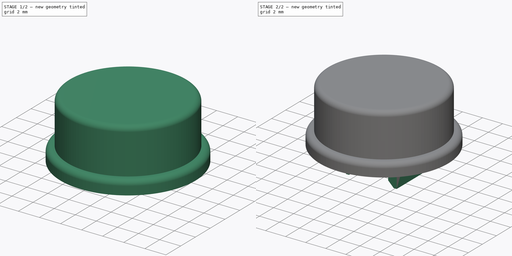
[diagram: build sequence overview — one tinted view per stage of 2, left to right]
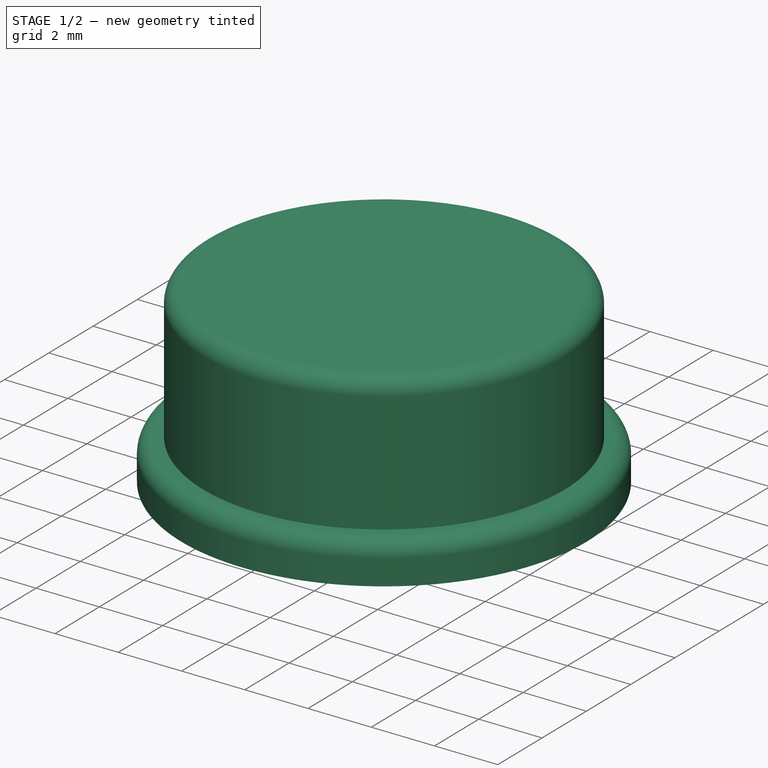
[diagram: stage 1 of 2 — iso view after this stage's code; geometry added in this stage tinted green]
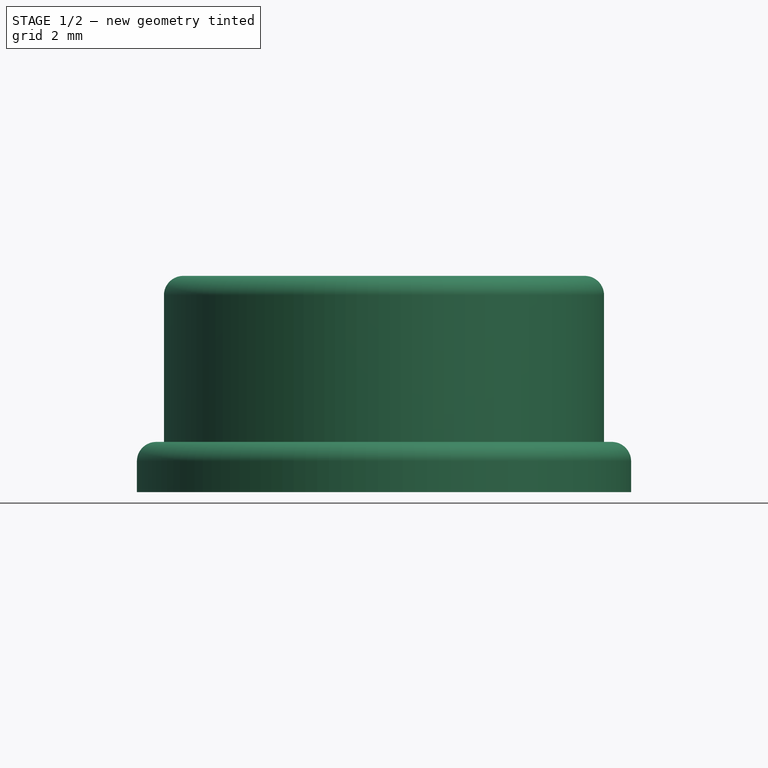
[diagram: stage 1 of 2 — front view after this stage's code; geometry added in this stage tinted green]
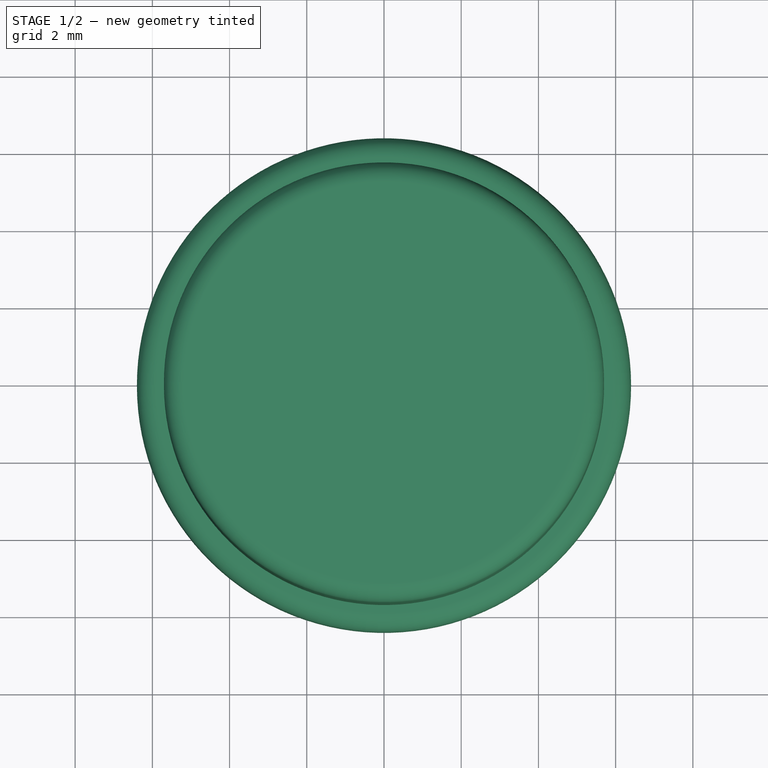
[diagram: stage 1 of 2 — top view after this stage's code; geometry added in this stage tinted green]
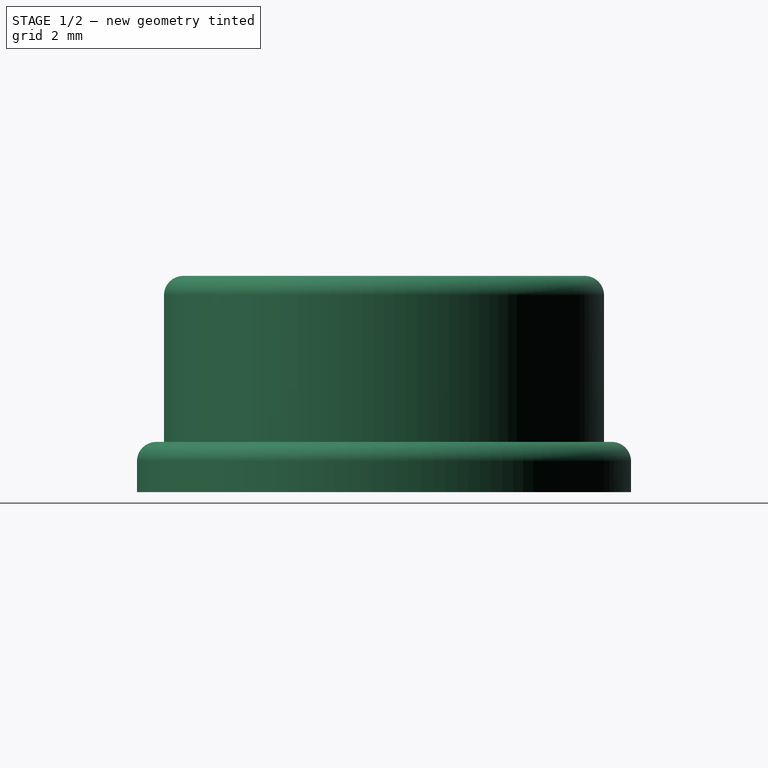
[diagram: stage 1 of 2 — right view after this stage's code; geometry added in this stage tinted green]
FCSTD DOCUMENT  (FreeCAD 0.19R24291 (Git))
Label: B3F-40XX-keycap
Comment: FreeCAD-models by mgesteiro -- https://github.com/mgesteiro/FreeCAD-models
License: Creative Commons Attribution-ShareAlike
LicenseURL: http://creativecommons.org/licenses/by-sa/4.0/
objects: Sketcher::SketchObject×4, PartDesign::Pad×3, PartDesign::Revolution×1, PartDesign::Body×1, App::Part×1, Part::Feature×1
note: 14 computed .brp shape members not serialized (recipe doc carries the construction recipe); baked Part::Feature solids carry a one-line shape summary decoded from their .brp

FEATURE [Sketcher::SketchObject] Sketch  label="Sketch-base-profile"
  FullyConstrained = true
  MapMode = 5
  Placement = pos=(0,0,0) rot=(1,0,0;1.5708rad)
  Support = -> [XZ_Plane002]
  sketch-geometry (13):
    g0: LineSegment StartX=0 StartY=5.6 StartZ=0 EndX=5.2 EndY=5.6 EndZ=0
    g1: LineSegment StartX=5.7 StartY=5.1 StartZ=0 EndX=5.7 EndY=1.3 EndZ=0
    g2: LineSegment StartX=5.7 StartY=1.3 StartZ=0 EndX=5.9 EndY=1.3 EndZ=0
    g3: LineSegment StartX=6.4 StartY=0.8 StartZ=0 EndX=6.4 EndY=0 EndZ=0
    g4: LineSegment StartX=6.4 StartY=0 StartZ=0 EndX=4.4 EndY=0 EndZ=0
    g5: LineSegment StartX=4.4 StartY=0 StartZ=0 EndX=4.4 EndY=3.8 EndZ=0
    g6: LineSegment StartX=3.9 StartY=4.3 StartZ=0 EndX=0 EndY=4.3 EndZ=0
    g7: LineSegment StartX=0 StartY=4.3 StartZ=0 EndX=0 EndY=5.6 EndZ=0
    g8: LineSegment StartX=5.7 StartY=1.3 StartZ=0 EndX=4.4 EndY=1.3 EndZ=0
    g9: ArcOfCircle CenterX=5.2 CenterY=5.1 CenterZ=0 NormalX=0 NormalY=0 NormalZ=1 AngleXU=0 Radius=0.5 StartAngle=0 EndAngle=1.5708
    g10: ArcOfCircle CenterX=3.9 CenterY=3.8 CenterZ=0 NormalX=0 NormalY=0 NormalZ=1 AngleXU=0 Radius=0.5 StartAngle=4e-16 EndAngle=1.5708
    g11: ArcOfCircle CenterX=5.9 CenterY=0.8 CenterZ=0 NormalX=0 NormalY=0 NormalZ=1 AngleXU=0 Radius=0.5 StartAngle=0 EndAngle=1.5708
    g12: LineSegment StartX=5.7 StartY=1.3 StartZ=0 EndX=5.7 EndY=0 EndZ=0
  constraints (36):
    c: PointOnObject(g0,g-2)
    c: Horizontal(g0)
    c: Vertical(g1)
    c: Coincident(g1,g2)
    c: Horizontal(g2)
    c: Vertical(g3)
    c: Coincident(g3,g4)
    c: Horizontal(g4)
    c: Coincident(g4,g5)
    c: Vertical(g5)
    c: Horizontal(g6)
    c: Coincident(g6,g7)
    c: Coincident(g7,g0)
    c: Vertical(g7)
    c: DistanceY(g7,g7) = 1.3
    c: DistanceX(g3) = 6.4
    c: Coincident(g8,g1)
    c: PointOnObject(g8,g5)
    c: Horizontal(g8)
    c: Equal(g8,g7)
    c: PointOnObject(g4,g-1)
    c: Tangent(g0,g9) = 1.5708
    c: Tangent(g1,g9) = 1.5708
    c: Tangent(g6,g10) = -1.5708
    c: Tangent(g5,g10) = -1.5708
    c: DistanceX(g1) = 5.7
    c: DistanceY(g0) = 5.6
    c: Equal(g10,g9)
    c: Radius(g9) = 0.5
    c: Tangent(g2,g11) = 1.5708
    c: Tangent(g3,g11) = 1.5708
    c: Equal(g11,g9)
    c: Coincident(g12,g1)
    c: PointOnObject(g12,g4)
    c: Vertical(g12)
    c: Equal(g12,g8)
FEATURE [PartDesign::Revolution] Revolution  label="Revolution-base"
  Angle = 360
  Axis = (0,2e-16,1)
  Base = (0,0,0)
  Placement = pos=(0,0,0) rot=(1,0,0;1.5708rad)
  Profile = -> Sketch
  ReferenceAxis = -> Sketch [V_Axis]
  Reversed = true
FEATURE [Sketcher::SketchObject] Sketch001  label="Sketch-interior-supports"
  FullyConstrained = true
  MapMode = 5
  Placement = pos=(0,2.8e-15,4.3) rot=(1,0,0;3.14159rad)
  Support = -> [Revolution]
  sketch-geometry (36):
    g0: LineSegment StartX=-0.25 StartY=4.725 StartZ=0 EndX=0.25 EndY=4.725 EndZ=0
    g1: LineSegment StartX=0.25 StartY=4.725 StartZ=0 EndX=0.25 EndY=2.525 EndZ=0
    g2: LineSegment StartX=0.25 StartY=2.525 StartZ=0 EndX=0.75 EndY=2.525 EndZ=0
    g3: LineSegment StartX=0.75 StartY=2.525 StartZ=0 EndX=0.75 EndY=1.925 EndZ=0
    g4: LineSegment StartX=0.75 StartY=1.925 StartZ=0 EndX=-0.75 EndY=1.925 EndZ=0
    g5: LineSegment StartX=-0.75 StartY=1.925 StartZ=0 EndX=-0.75 EndY=2.525 EndZ=0
    g6: LineSegment StartX=-0.75 StartY=2.525 StartZ=0 EndX=-0.25 EndY=2.525 EndZ=0
    g7: LineSegment StartX=-0.25 StartY=2.525 StartZ=0 EndX=-0.25 EndY=4.725 EndZ=0
    g8: LineSegment StartX=-0.25 StartY=2.525 StartZ=0 EndX=0.25 EndY=2.525 EndZ=0
    g9: LineSegment StartX=-0.25 StartY=-4.725 StartZ=0 EndX=0.25 EndY=-4.725 EndZ=0
    g10: LineSegment StartX=0.25 StartY=-4.725 StartZ=0 EndX=0.25 EndY=-2.525 EndZ=0
    g11: LineSegment StartX=0.25 StartY=-2.525 StartZ=0 EndX=0.75 EndY=-2.525 EndZ=0
    g12: LineSegment StartX=0.75 StartY=-2.525 StartZ=0 EndX=0.75 EndY=-1.925 EndZ=0
    g13: LineSegment StartX=0.75 StartY=-1.925 StartZ=0 EndX=-0.75 EndY=-1.925 EndZ=0
    g14: LineSegment StartX=-0.75 StartY=-1.925 StartZ=0 EndX=-0.75 EndY=-2.525 EndZ=0
    g15: LineSegment StartX=-0.75 StartY=-2.525 StartZ=0 EndX=-0.25 EndY=-2.525 EndZ=0
    g16: LineSegment StartX=-0.25 StartY=-2.525 StartZ=0 EndX=-0.25 EndY=-4.725 EndZ=0
    g17: LineSegment StartX=-0.25 StartY=-2.525 StartZ=0 EndX=0.25 EndY=-2.525 EndZ=0
    g18: LineSegment StartX=1.925 StartY=1.8 StartZ=0 EndX=1.925 EndY=-1.8 EndZ=0
    g19: LineSegment StartX=1.925 StartY=-1.8 StartZ=0 EndX=2.525 EndY=-1.8 EndZ=0
    g20: LineSegment StartX=2.525 StartY=-1.8 StartZ=0 EndX=2.525 EndY=-0.25 EndZ=0
    g21: LineSegment StartX=2.525 StartY=-0.25 StartZ=0 EndX=4.725 EndY=-0.25 EndZ=0
    g22: LineSegment StartX=4.725 StartY=-0.25 StartZ=0 EndX=4.725 EndY=0.25 EndZ=0
    g23: LineSegment StartX=4.725 StartY=0.25 StartZ=0 EndX=2.525 EndY=0.25 EndZ=0
    g24: LineSegment StartX=2.525 StartY=0.25 StartZ=0 EndX=2.525 EndY=1.8 EndZ=0
    g25: LineSegment StartX=2.525 StartY=1.8 StartZ=0 EndX=1.925 EndY=1.8 EndZ=0
    g26: LineSegment StartX=2.525 StartY=0.25 StartZ=0 EndX=2.525 EndY=-0.25 EndZ=0
    g27: LineSegment StartX=-1.925 StartY=1.8 StartZ=0 EndX=-1.925 EndY=-1.8 EndZ=0
    g28: LineSegment StartX=-1.925 StartY=-1.8 StartZ=0 EndX=-2.525 EndY=-1.8 EndZ=0
    g29: LineSegment StartX=-2.525 StartY=-1.8 StartZ=0 EndX=-2.525 EndY=-0.25 EndZ=0
    g30: LineSegment StartX=-2.525 StartY=-0.25 StartZ=0 EndX=-4.725 EndY=-0.25 EndZ=0
    g31: LineSegment StartX=-4.725 StartY=-0.25 StartZ=0 EndX=-4.725 EndY=0.25 EndZ=0
    g32: LineSegment StartX=-4.725 StartY=0.25 StartZ=0 EndX=-2.525 EndY=0.25 EndZ=0
    g33: LineSegment StartX=-2.525 StartY=0.25 StartZ=0 EndX=-2.525 EndY=1.8 EndZ=0
    g34: LineSegment StartX=-2.525 StartY=1.8 StartZ=0 EndX=-1.925 EndY=1.8 EndZ=0
    g35: LineSegment StartX=-2.525 StartY=0.25 StartZ=0 EndX=-2.525 EndY=-0.25 EndZ=0
  constraints (96):
    c: Coincident(g0,g1)
    c: Vertical(g1)
    c: Coincident(g1,g2)
    c: Horizontal(g2)
    c: Coincident(g2,g3)
    c: Vertical(g3)
    c: Coincident(g3,g4)
    c: Coincident(g4,g5)
    c: Vertical(g5)
    c: Coincident(g5,g6)
    c: Horizontal(g6)
    c: Coincident(g6,g7)
    c: Coincident(g7,g0)
    c: Vertical(g7)
    c: Symmetric(g0,g0,g-2)
    c: Symmetric(g4,g3,g-2)
    c: DistanceX(g0,g0) = 0.5
    c: Coincident(g8,g6)
    c: Coincident(g8,g1)
    c: Horizontal(g8)
    c: DistanceY(g3,g3) = 0.6
    c: DistanceX(g4,g4) = 1.5
    c: DistanceY(g4) = 1.925
    c: DistanceY(g7,g7) = 2.2
    c: Coincident(g9,g10)
    c: Vertical(g10)
    c: Coincident(g10,g11)
    c: Horizontal(g11)
    c: Coincident(g11,g12)
    c: Vertical(g12)
    c: Coincident(g12,g13)
    c: Coincident(g13,g14)
    c: Vertical(g14)
    c: Coincident(g14,g15)
    c: Horizontal(g15)
    c: Coincident(g15,g16)
    c: Coincident(g16,g9)
    c: Vertical(g16)
    c: Coincident(g17,g15)
    c: Coincident(g17,g10)
    c: Horizontal(g17)
    c: Symmetric(g13,g12,g-2)
    c: Symmetric(g9,g9,g-2)
    c: Equal(g16,g7)
    c: Equal(g14,g5)
    c: DistanceY(g13) = -1.925
    c: Equal(g13,g4)
    c: Equal(g9,g0)
    c: Coincident(g18,g19)
    c: Horizontal(g19)
    c: Coincident(g19,g20)
    c: Vertical(g20)
    c: Coincident(g20,g21)
    c: Horizontal(g21)
    c: Coincident(g21,g22)
    c: Coincident(g22,g23)
    c: Horizontal(g23)
    c: Coincident(g23,g24)
    c: Vertical(g24)
    c: Coincident(g24,g25)
    c: Coincident(g25,g18)
    c: Horizontal(g25)
    c: Coincident(g26,g23)
    c: Coincident(g26,g20)
    c: Vertical(g26)
    c: Equal(g3,g25)
    c: Symmetric(g18,g18,g-1)
    c: Symmetric(g21,g22,g-1)
    c: Equal(g22,g0)
    c: Equal(g23,g7)
    c: DistanceX(g-1,g18) = 1.925
    c: DistanceY(g18,g18) = 3.6
    c: Coincident(g27,g28)
    c: Horizontal(g28)
    c: Coincident(g28,g29)
    c: Vertical(g29)
    c: Coincident(g29,g30)
    c: Horizontal(g30)
    c: Coincident(g30,g31)
    c: Coincident(g31,g32)
    c: Horizontal(g32)
    c: Coincident(g32,g33)
    c: Vertical(g33)
    c: Coincident(g33,g34)
    c: Coincident(g34,g27)
    c: Horizontal(g34)
    c: Coincident(g35,g32)
    c: Coincident(g35,g29)
    c: Vertical(g35)
    c: Equal(g27,g18)
    c: Symmetric(g27,g27,g-1)
    c: Equal(g34,g25)
    c: Equal(g30,g21)
    c: Symmetric(g31,g30,g-1)
    c: Equal(g31,g22)
    c: DistanceX(g27) = -1.925
FEATURE [PartDesign::Pad] Pad  label="Pad-interior-supports"
  BaseFeature = -> Revolution
  Direction = (1,1,1)
  Length = 4
  Length2 = 100
  Placement = pos=(0,0,0) rot=(1,0,0;1.5708rad)
  Profile = -> Sketch001
  Type = 0
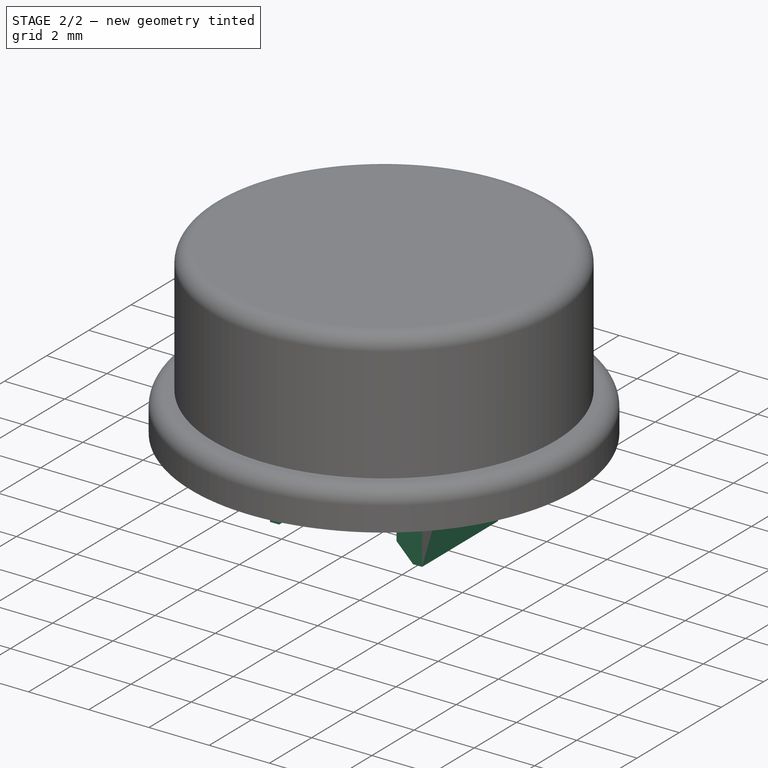
[diagram: stage 2 of 2 — iso view after this stage's code; geometry added in this stage tinted green]
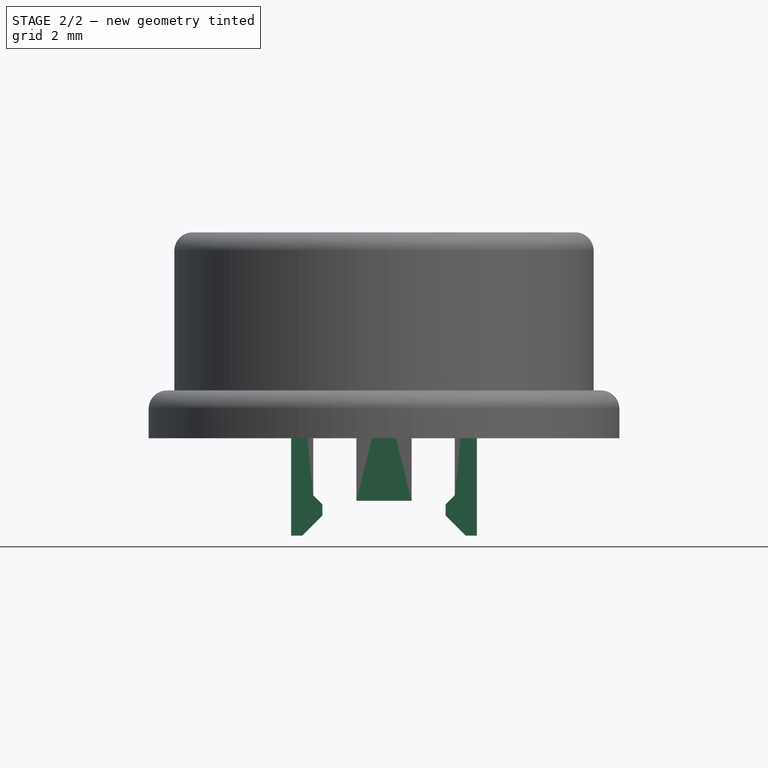
[diagram: stage 2 of 2 — front view after this stage's code; geometry added in this stage tinted green]
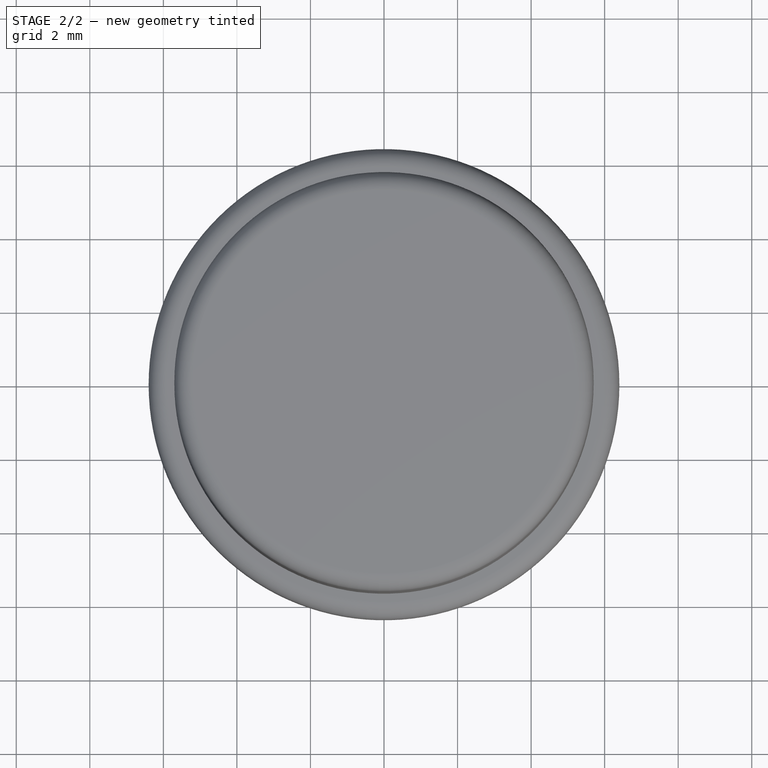
[diagram: stage 2 of 2 — top view after this stage's code; geometry added in this stage tinted green]
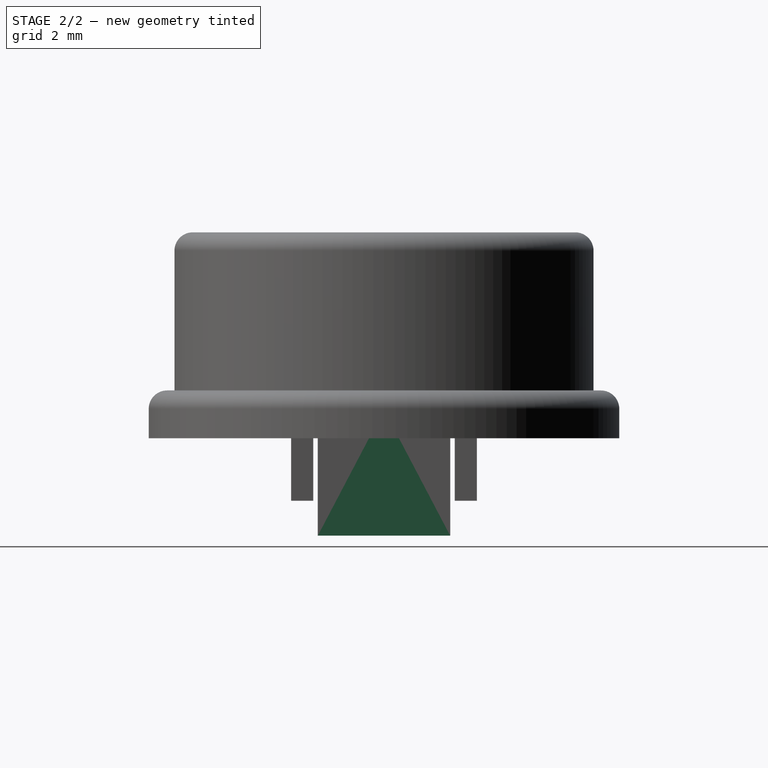
[diagram: stage 2 of 2 — right view after this stage's code; geometry added in this stage tinted green]
FEATURE [Sketcher::SketchObject] Sketch002  label="Sketch-small-walls"
  ExternalGeometry = -> [Pad]
  FullyConstrained = true
  MapMode = 5
  Placement = pos=(0,3e-16,0.3) rot=(1,0,0;3.14159rad)
  Support = -> [Pad]
  sketch-geometry (8):
    g0: LineSegment StartX=-0.75 StartY=2.525 StartZ=0 EndX=0.75 EndY=2.525 EndZ=0
    g1: LineSegment StartX=0.75 StartY=2.525 StartZ=0 EndX=0.75 EndY=1.925 EndZ=0
    g2: LineSegment StartX=0.75 StartY=1.925 StartZ=0 EndX=-0.75 EndY=1.925 EndZ=0
    g3: LineSegment StartX=-0.75 StartY=1.925 StartZ=0 EndX=-0.75 EndY=2.525 EndZ=0
    g4: LineSegment StartX=-0.75 StartY=-1.925 StartZ=0 EndX=0.75 EndY=-1.925 EndZ=0
    g5: LineSegment StartX=0.75 StartY=-1.925 StartZ=0 EndX=0.75 EndY=-2.525 EndZ=0
    g6: LineSegment StartX=0.75 StartY=-2.525 StartZ=0 EndX=-0.75 EndY=-2.525 EndZ=0
    g7: LineSegment StartX=-0.75 StartY=-2.525 StartZ=0 EndX=-0.75 EndY=-1.925 EndZ=0
  constraints (20):
    c: Coincident(g0,g1)
    c: Coincident(g1,g2)
    c: Coincident(g2,g3)
    c: Coincident(g3,g0)
    c: Horizontal(g0)
    c: Horizontal(g2)
    c: Vertical(g1)
    c: Vertical(g3)
    c: Coincident(g0,g-5)
    c: Coincident(g1,g-6)
    c: Coincident(g4,g5)
    c: Coincident(g5,g6)
    c: Coincident(g6,g7)
    c: Coincident(g7,g4)
    c: Horizontal(g4)
    c: Horizontal(g6)
    c: Vertical(g5)
    c: Vertical(g7)
    c: Coincident(g4,g-3)
    c: Coincident(g5,g-4)
FEATURE [PartDesign::Pad] Pad001  label="Pad-small-walls"
  BaseFeature = -> Pad
  Direction = (1,1,1)
  Length = 2
  Length2 = 100
  Placement = pos=(0,0,0) rot=(1,0,0;1.5708rad)
  Profile = -> Sketch002
  Refine = true
  Type = 0
FEATURE [Sketcher::SketchObject] Sketch003  label="Sketch-hooks"
  ExternalGeometry = -> [Pad001]
  FullyConstrained = true
  MapMode = 5
  Placement = pos=(0,-1.8,2e-15) rot=(1,0,0;1.5708rad)
  Support = -> [Pad001]
  sketch-geometry (14):
    g0: LineSegment StartX=-2.525 StartY=0.3 StartZ=0 EndX=-1.925 EndY=0.3 EndZ=0
    g1: LineSegment StartX=-1.925 StartY=0.3 StartZ=0 EndX=-1.925 EndY=-1.55 EndZ=0
    g2: LineSegment StartX=-1.925 StartY=-1.55 StartZ=0 EndX=-1.675 EndY=-1.8 EndZ=0
    g3: LineSegment StartX=-1.675 StartY=-1.8 StartZ=0 EndX=-1.675 EndY=-2.1 EndZ=0
    g4: LineSegment StartX=-1.675 StartY=-2.1 StartZ=0 EndX=-2.225 EndY=-2.65 EndZ=0
    g5: LineSegment StartX=-2.525 StartY=-2.65 StartZ=0 EndX=-2.525 EndY=0.3 EndZ=0
    g6: LineSegment StartX=-2.525 StartY=-2.65 StartZ=0 EndX=-2.225 EndY=-2.65 EndZ=0
    g7: LineSegment StartX=2.525 StartY=0.3 StartZ=0 EndX=1.925 EndY=0.3 EndZ=0
    g8: LineSegment StartX=1.925 StartY=0.3 StartZ=0 EndX=1.925 EndY=-1.55 EndZ=0
    g9: LineSegment StartX=1.925 StartY=-1.55 StartZ=0 EndX=1.675 EndY=-1.8 EndZ=0
    g10: LineSegment StartX=1.675 StartY=-1.8 StartZ=0 EndX=1.675 EndY=-2.1 EndZ=0
    g11: LineSegment StartX=1.675 StartY=-2.1 StartZ=0 EndX=2.225 EndY=-2.65 EndZ=0
    g12: LineSegment StartX=2.525 StartY=-2.65 StartZ=0 EndX=2.525 EndY=0.3 EndZ=0
    g13: LineSegment StartX=2.525 StartY=-2.65 StartZ=0 EndX=2.225 EndY=-2.65 EndZ=0
  constraints (38):
    c: Coincident(g-3,g0)
    c: Coincident(g0,g-3)
    c: Coincident(g0,g1)
    c: Vertical(g1)
    c: Coincident(g1,g2)
    c: Coincident(g2,g3)
    c: Vertical(g3)
    c: Coincident(g3,g4)
    c: Coincident(g5,g0)
    c: Vertical(g5)
    c: Horizontal(g6)
    c: Coincident(g4,g6)
    c: Coincident(g5,g6)
    c: Angle(g2,g4) = 1.5708
    c: Angle(g2,g1) = 2.35619
    c: DistanceY(g5,g5) = 2.95
    c: DistanceY(g1,g1) = 1.85
    c: Equal(g6,g3)
    c: DistanceX(g6,g6) = 0.3
    c: Coincident(g7,g8)
    c: Vertical(g8)
    c: Coincident(g8,g9)
    c: Coincident(g9,g10)
    c: Vertical(g10)
    c: Coincident(g10,g11)
    c: Coincident(g12,g7)
    c: Vertical(g12)
    c: Horizontal(g13)
    c: Coincident(g11,g13)
    c: Coincident(g12,g13)
    c: Angle(g9,g11) = -1.5708
    c: Angle(g9,g8) = -2.35619
    c: Equal(g13,g10)
    c: Coincident(g7,g-4)
    c: Coincident(g-4,g7)
    c: Equal(g13,g6)
    c: Equal(g12,g5)
    c: Equal(g1,g8)
FEATURE [PartDesign::Pad] Pad002  label="Pad-hooks"
  BaseFeature = -> Pad001
  Direction = (1,1,1)
  Length = 3.6
  Length2 = 100
  Placement = pos=(0,0,0) rot=(1,0,0;1.5708rad)
  Profile = -> Sketch003
  Refine = true
  Reversed = true
  Type = 0
FEATURE [PartDesign::Body] Body  label="Body-BF3-40XX-Keycap"
  Group = -> [Sketch,Revolution,Sketch001,Pad,Sketch002,Pad001,Sketch003,Pad002]
  Origin = -> Origin002
  Tip = -> Pad002
FEATURE [App::Part] Part001  label="Part-BF3-40XX-Keycap"
  Group = -> [Body]
  Origin = -> Origin001
  Placement = pos=(24.14,7.9,7) rot=(0,0,1;0rad)
FEATURE [Part::Feature] Part001001  label="keycap"
  Placement = pos=(24.14,7.9,7) rot=(0,0,1;0rad)
  shape: bbox 13.85 x 13.85 x 8.25 mm, 51 faces (baked)
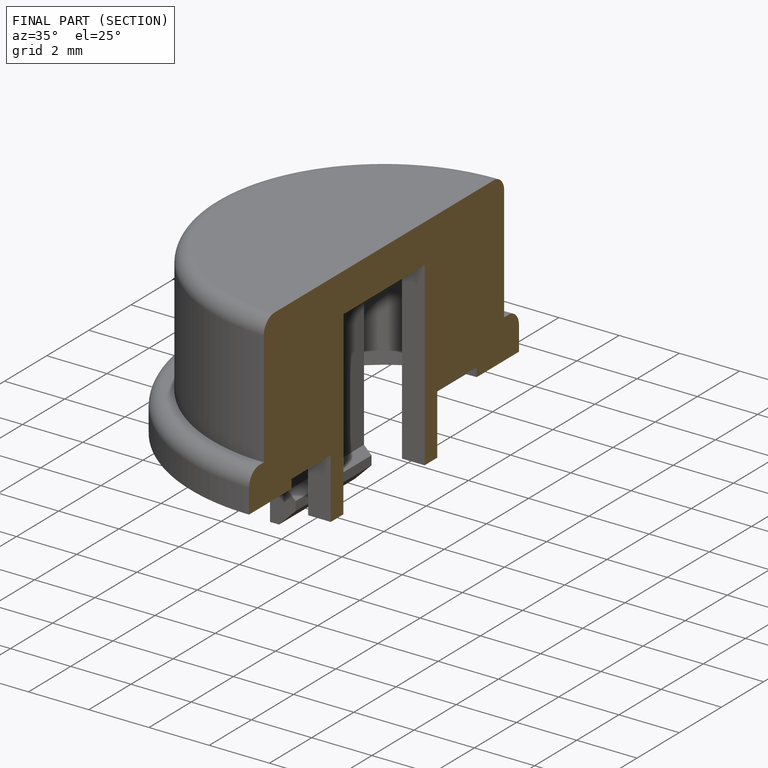
[diagram: finished part — half-section view (interior)]
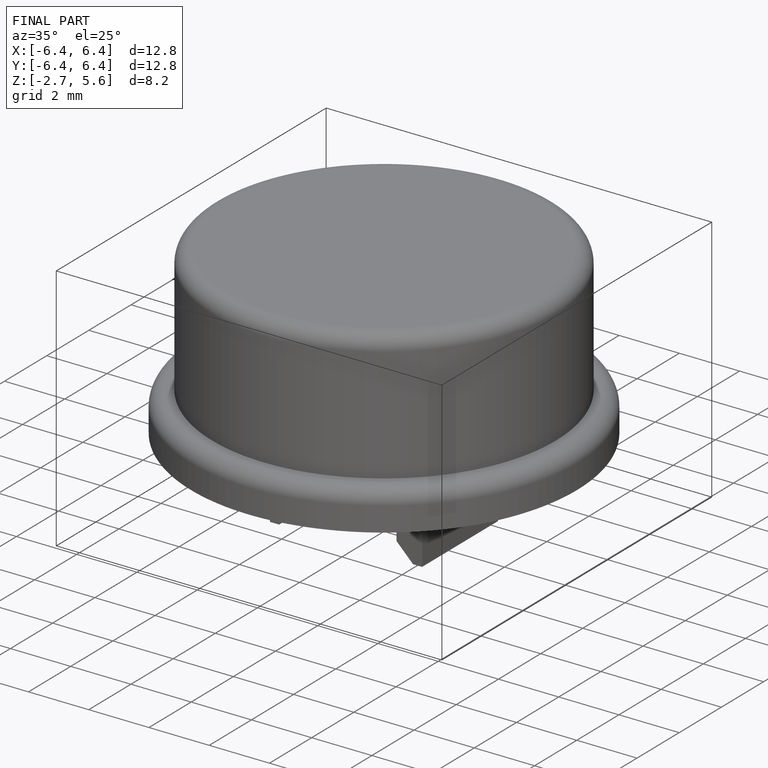
[diagram: finished part — iso view with bounding-box wireframe]
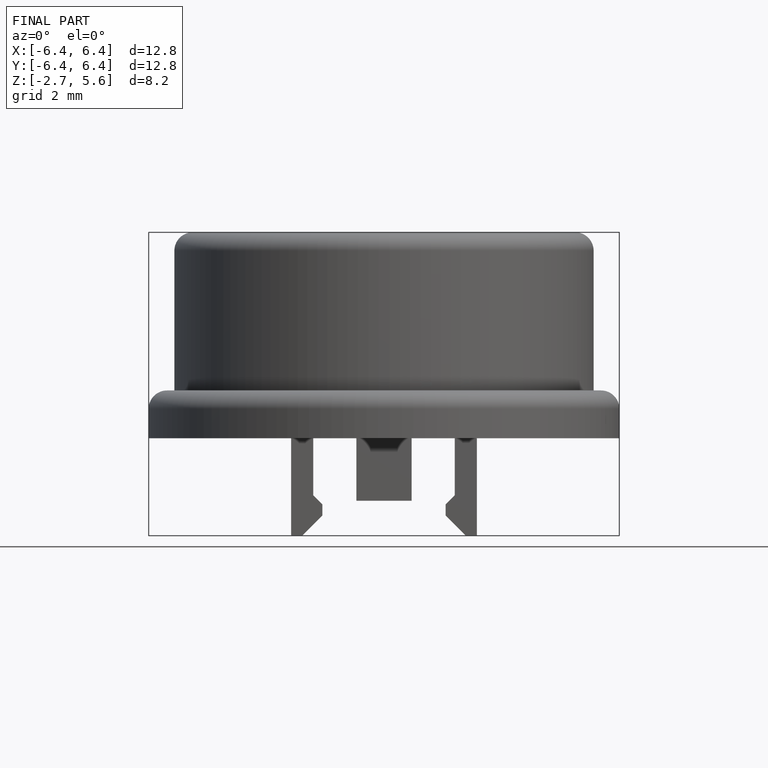
[diagram: finished part — front view with bounding-box wireframe]
